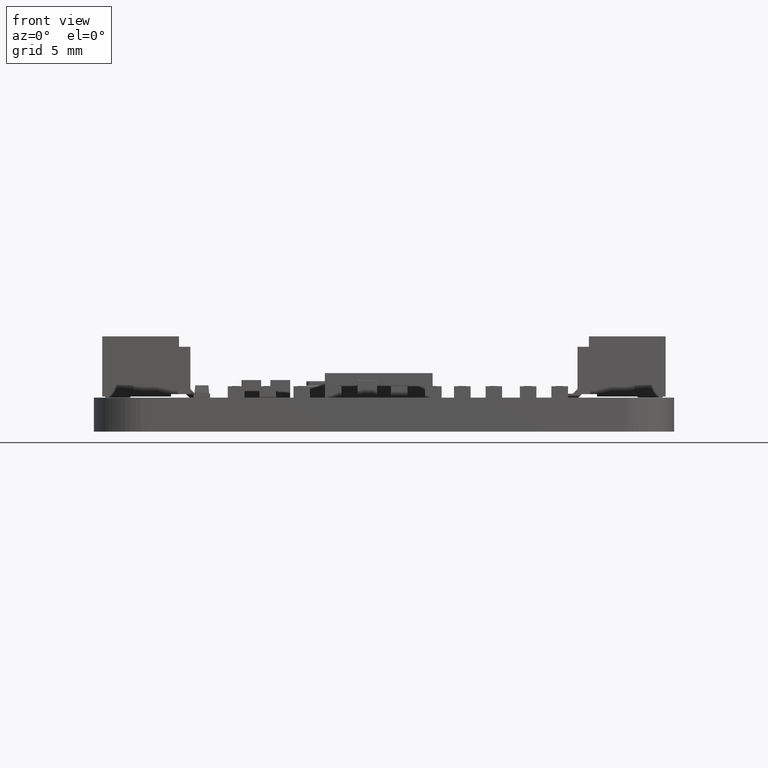
[diagram: clean part render]
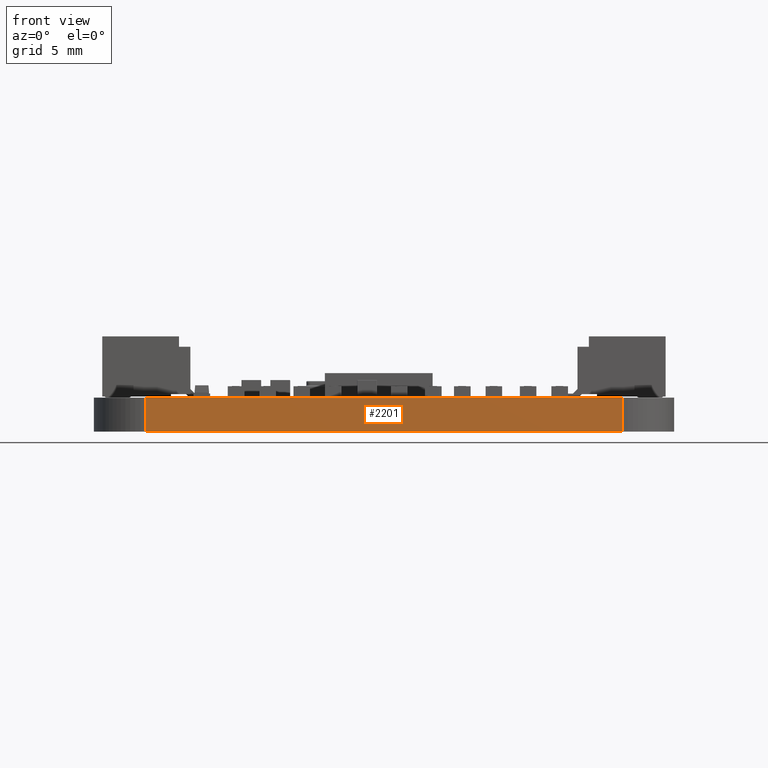
[diagram: same view with one face highlighted and labeled with its STEP entity id]
A machine part, front view. The second image highlights one B-rep face of the part: STEP entity #2201.
In plain terms, the highlighted planar face has unit normal (0, 1, 0).
Its self-contained STEP definition (entity closure, byte-faithful):
#2143 = EDGE_CURVE('',#2144,#2146,#2148,.T.);
#2144 = VERTEX_POINT('',#2145);
#2145 = CARTESIAN_POINT('',(26.5,-23.,-0.82));
#2146 = VERTEX_POINT('',#2147);
#2147 = CARTESIAN_POINT('',(26.5,-23.,0.82));
#2148 = LINE('',#2149,#2150);
#2149 = CARTESIAN_POINT('',(26.5,-23.,-0.82));
#2150 = VECTOR('',#2151,1.);
#2151 = DIRECTION('',(0.,0.,1.));
#2176 = VERTEX_POINT('',#2177);
#2177 = CARTESIAN_POINT('',(3.5,-23.,0.82));
#2183 = EDGE_CURVE('',#2184,#2176,#2186,.T.);
#2184 = VERTEX_POINT('',#2185);
#2185 = CARTESIAN_POINT('',(3.5,-23.,-0.82));
#2186 = LINE('',#2187,#2188);
#2187 = CARTESIAN_POINT('',(3.5,-23.,-0.82));
#2188 = VECTOR('',#2189,1.);
#2189 = DIRECTION('',(0.,0.,1.));
#2201 = ADVANCED_FACE('',(#2202),#2218,.F.);
#2202 = FACE_BOUND('',#2203,.F.);
#2203 = EDGE_LOOP('',(#2204,#2205,#2211,#2212));
#2204 = ORIENTED_EDGE('',*,*,#2183,.T.);
#2205 = ORIENTED_EDGE('',*,*,#2206,.T.);
#2206 = EDGE_CURVE('',#2176,#2146,#2207,.T.);
#2207 = LINE('',#2208,#2209);
#2208 = CARTESIAN_POINT('',(3.5,-23.,0.82));
#2209 = VECTOR('',#2210,1.);
#2210 = DIRECTION('',(1.,0.,0.));
#2211 = ORIENTED_EDGE('',*,*,#2143,.F.);
#2212 = ORIENTED_EDGE('',*,*,#2213,.F.);
#2213 = EDGE_CURVE('',#2184,#2144,#2214,.T.);
#2214 = LINE('',#2215,#2216);
#2215 = CARTESIAN_POINT('',(3.5,-23.,-0.82));
#2216 = VECTOR('',#2217,1.);
#2217 = DIRECTION('',(1.,0.,0.));
#2218 = PLANE('',#2219);
#2219 = AXIS2_PLACEMENT_3D('',#2220,#2221,#2222);
#2220 = CARTESIAN_POINT('',(3.5,-23.,-0.82));
#2221 = DIRECTION('',(0.,1.,0.));
#2222 = DIRECTION('',(1.,0.,0.));